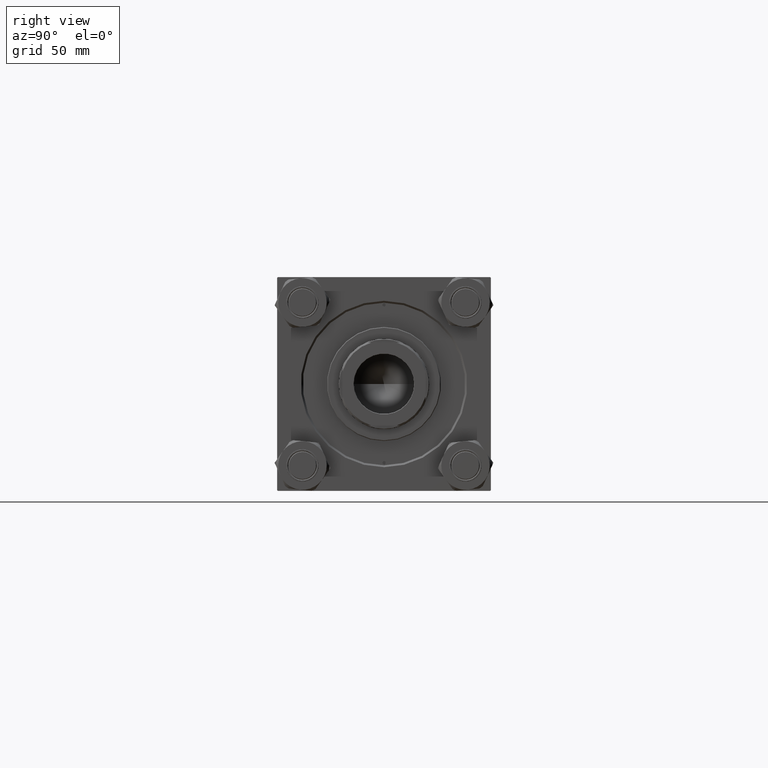
[diagram: clean part render]
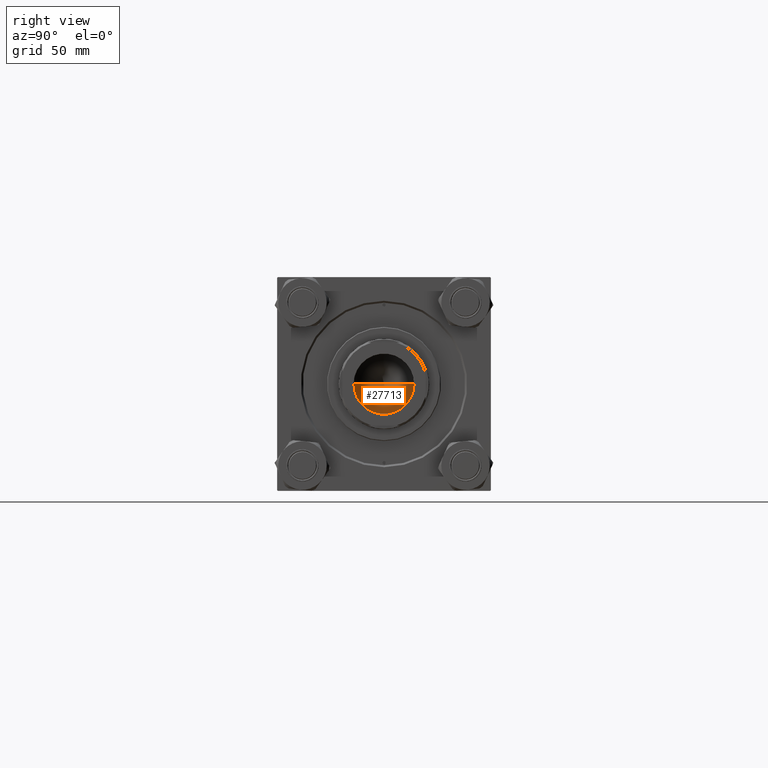
[diagram: same view with one face highlighted and labeled with its STEP entity id]
A machine part, right view. The second image highlights one B-rep face of the part: STEP entity #27713.
In plain terms, the highlighted conical surface has half-angle 59 deg.
Its self-contained STEP definition (entity closure, byte-faithful):
#376 = VECTOR ( 'NONE', #14438, 1000.000000000000000 ) ;
#2488 = EDGE_LOOP ( 'NONE', ( #47008, #41772, #39762 ) ) ;
#3217 = CARTESIAN_POINT ( 'NONE',  ( 23.24999999999998579, 0.000000000000000000, 309.0000000000000000 ) ) ;
#4447 = CARTESIAN_POINT ( 'NONE',  ( 0.000000000000000000, 0.000000000000000000, 309.0000000000000000 ) ) ;
#5318 = LINE ( 'NONE', #21857, #21717 ) ;
#9884 = DIRECTION ( 'NONE',  ( -0.8571673007021117785, 1.049727191138617956E-16, 0.5150380749100550437 ) ) ;
#14438 = DIRECTION ( 'NONE',  ( 0.8571673007021117785, 0.000000000000000000, 0.5150380749100550437 ) ) ;
#16522 = AXIS2_PLACEMENT_3D ( 'NONE', #4447, #35609, #41177 ) ;
#17177 = DIRECTION ( 'NONE',  ( -0.000000000000000000, -0.000000000000000000, 1.000000000000000000 ) ) ;
#17674 = CARTESIAN_POINT ( 'NONE',  ( 0.000000000000000000, 0.000000000000000000, 309.0000000000000000 ) ) ;
#19121 = VERTEX_POINT ( 'NONE', #22801 ) ;
#21717 = VECTOR ( 'NONE', #9884, 1000.000000000000000 ) ;
#21857 = CARTESIAN_POINT ( 'NONE',  ( -23.24999999999998579, 2.847303808017594561E-15, 309.0000000000000000 ) ) ;
#22075 = VERTEX_POINT ( 'NONE', #46043 ) ;
#22801 = CARTESIAN_POINT ( 'NONE',  ( -1.584115414415908206E-14, 0.000000000000000000, 295.0299906076091929 ) ) ;
#23888 = CARTESIAN_POINT ( 'NONE',  ( -23.24999999999998579, 2.847303808017594561E-15, 309.0000000000000000 ) ) ;
#27713 = ADVANCED_FACE ( 'NONE', ( #39427 ), #40164, .F. ) ;
#33168 = CIRCLE ( 'NONE', #38858, 23.24999999999998579 ) ;
#35309 = LINE ( 'NONE', #3217, #376 ) ;
#35609 = DIRECTION ( 'NONE',  ( -0.000000000000000000, -0.000000000000000000, 1.000000000000000000 ) ) ;
#38254 = EDGE_CURVE ( 'NONE', #19121, #45946, #5318, .T. ) ;
#38858 = AXIS2_PLACEMENT_3D ( 'NONE', #17674, #17177, #44982 ) ;
#39427 = FACE_OUTER_BOUND ( 'NONE', #2488, .T. ) ;
#39762 = ORIENTED_EDGE ( 'NONE', *, *, #49220, .T. ) ;
#40164 = CONICAL_SURFACE ( 'NONE', #16522, 23.24999999999998579, 1.029744258676653423 ) ;
#40255 = EDGE_CURVE ( 'NONE', #19121, #22075, #35309, .T. ) ;
#41177 = DIRECTION ( 'NONE',  ( 1.000000000000000000, 0.000000000000000000, 0.000000000000000000 ) ) ;
#41772 = ORIENTED_EDGE ( 'NONE', *, *, #40255, .T. ) ;
#44982 = DIRECTION ( 'NONE',  ( 1.000000000000000000, 0.000000000000000000, 0.000000000000000000 ) ) ;
#45946 = VERTEX_POINT ( 'NONE', #23888 ) ;
#46043 = CARTESIAN_POINT ( 'NONE',  ( 23.24999999999998579, 0.000000000000000000, 309.0000000000000000 ) ) ;
#47008 = ORIENTED_EDGE ( 'NONE', *, *, #38254, .F. ) ;
#49220 = EDGE_CURVE ( 'NONE', #22075, #45946, #33168, .T. ) ;